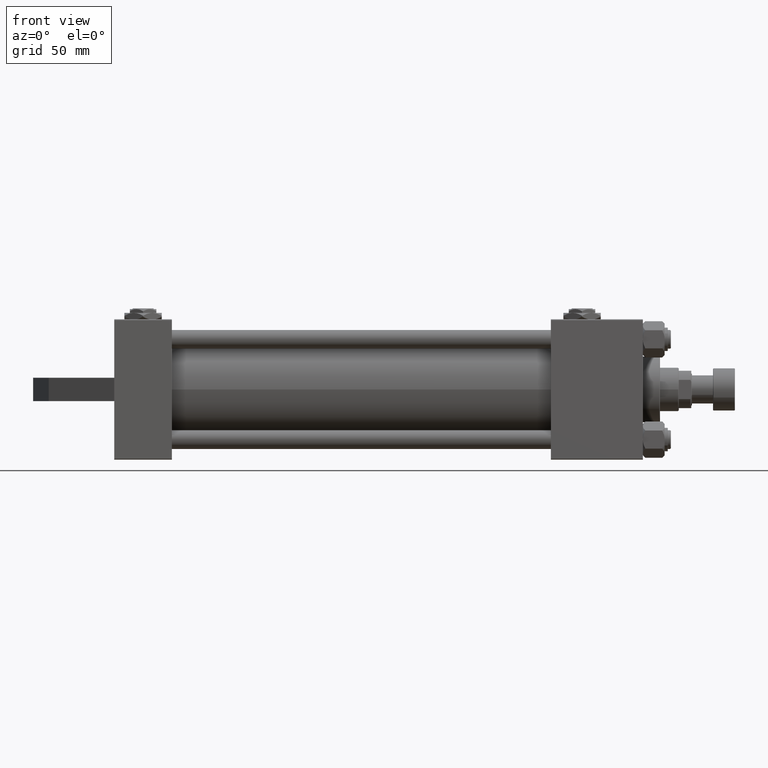
[diagram: clean part render]
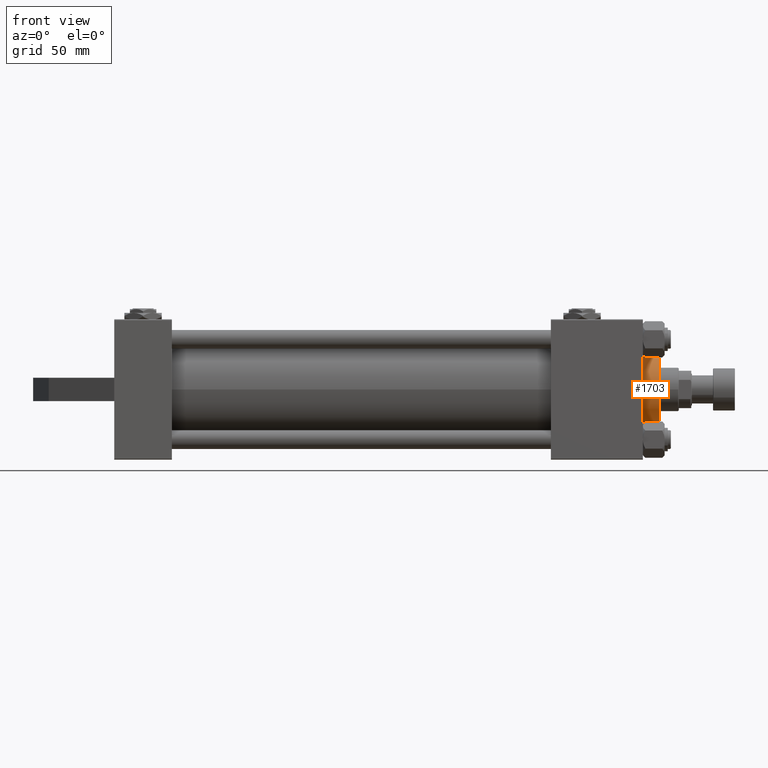
[diagram: same view with one face highlighted and labeled with its STEP entity id]
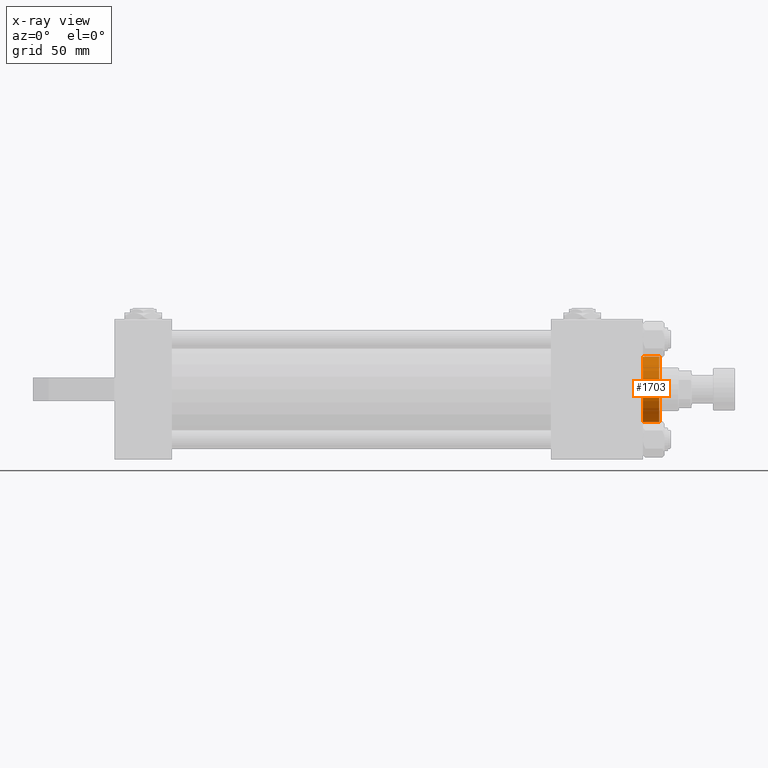
[diagram: x-ray of the same camera — body ghosted, the highlighted face saturated]
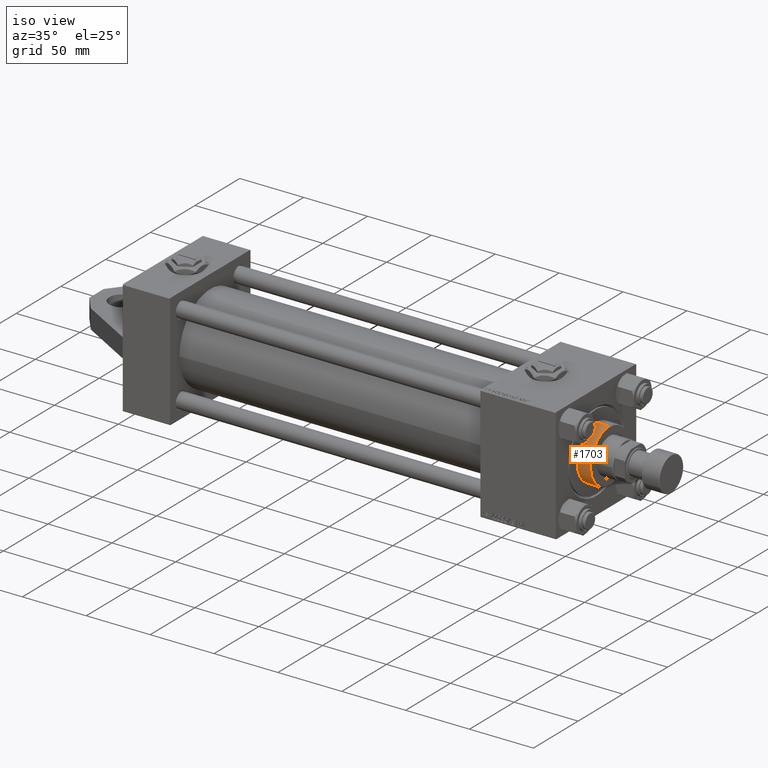
[diagram: same view with one face highlighted and labeled with its STEP entity id]
A machine part, front view. The second image highlights one B-rep face of the part: STEP entity #1703.
The next image is the same camera in x-ray: the body ghosted, the highlighted face saturated — about 0% of this face is hidden behind the body in this view.
A second angle (iso view) of the same face is appended — the face is thin or edge-on in the first view.
In plain terms, the highlighted cylindrical surface (edge-blend (fillet) strip) has radius 21 mm, axis along (-1, -0, -0).
Its self-contained STEP definition (entity closure, byte-faithful):
#485 = VERTEX_POINT ( 'NONE', #30337 ) ;
#1703 = ADVANCED_FACE ( 'NONE', ( #20381 ), #39796, .T. ) ;
#5157 = CIRCLE ( 'NONE', #9856, 21.00000000000000000 ) ;
#5662 = VERTEX_POINT ( 'NONE', #21881 ) ;
#6548 = CARTESIAN_POINT ( 'NONE',  ( 0.000000000000000000, 0.000000000000000000, 28.69999999999999929 ) ) ;
#7603 = CIRCLE ( 'NONE', #34278, 21.00000000000000000 ) ;
#9856 = AXIS2_PLACEMENT_3D ( 'NONE', #16030, #34948, #27824 ) ;
#14960 = ORIENTED_EDGE ( 'NONE', *, *, #47801, .T. ) ;
#15746 = AXIS2_PLACEMENT_3D ( 'NONE', #32174, #25045, #46671 ) ;
#16030 = CARTESIAN_POINT ( 'NONE',  ( 0.000000000000000000, 0.000000000000000000, 39.19999999999999574 ) ) ;
#16366 = VERTEX_POINT ( 'NONE', #17777 ) ;
#16597 = EDGE_CURVE ( 'NONE', #16366, #5662, #5157, .T. ) ;
#17777 = CARTESIAN_POINT ( 'NONE',  ( 21.00000000000000000, 2.571758278209441661E-15, 39.19999999999999574 ) ) ;
#19594 = EDGE_CURVE ( 'NONE', #22884, #485, #7603, .T. ) ;
#20381 = FACE_OUTER_BOUND ( 'NONE', #30198, .T. ) ;
#21881 = CARTESIAN_POINT ( 'NONE',  ( -21.00000000000000000, 0.000000000000000000, 39.19999999999999574 ) ) ;
#22351 = DIRECTION ( 'NONE',  ( -0.000000000000000000, -0.000000000000000000, -1.000000000000000000 ) ) ;
#22884 = VERTEX_POINT ( 'NONE', #39319 ) ;
#25045 = DIRECTION ( 'NONE',  ( -0.000000000000000000, -0.000000000000000000, -1.000000000000000000 ) ) ;
#25558 = LINE ( 'NONE', #41040, #30621 ) ;
#26331 = ORIENTED_EDGE ( 'NONE', *, *, #16597, .T. ) ;
#27824 = DIRECTION ( 'NONE',  ( 1.000000000000000000, 0.000000000000000000, 0.000000000000000000 ) ) ;
#30198 = EDGE_LOOP ( 'NONE', ( #46355, #26331, #14960, #37477 ) ) ;
#30337 = CARTESIAN_POINT ( 'NONE',  ( 21.00000000000000000, 2.571758278209441661E-15, 28.69999999999999929 ) ) ;
#30621 = VECTOR ( 'NONE', #22351, 1000.000000000000000 ) ;
#32174 = CARTESIAN_POINT ( 'NONE',  ( 0.000000000000000000, 0.000000000000000000, 39.69999999999999574 ) ) ;
#34278 = AXIS2_PLACEMENT_3D ( 'NONE', #6548, #36521, #47833 ) ;
#34948 = DIRECTION ( 'NONE',  ( 0.000000000000000000, 0.000000000000000000, -1.000000000000000000 ) ) ;
#36521 = DIRECTION ( 'NONE',  ( 0.000000000000000000, 0.000000000000000000, 1.000000000000000000 ) ) ;
#36771 = LINE ( 'NONE', #43907, #37921 ) ;
#37477 = ORIENTED_EDGE ( 'NONE', *, *, #19594, .T. ) ;
#37921 = VECTOR ( 'NONE', #44379, 1000.000000000000000 ) ;
#39319 = CARTESIAN_POINT ( 'NONE',  ( -21.00000000000000000, 0.000000000000000000, 28.69999999999999929 ) ) ;
#39796 = CYLINDRICAL_SURFACE ( 'NONE', #15746, 21.00000000000000000 ) ;
#39979 = EDGE_CURVE ( 'NONE', #16366, #485, #25558, .T. ) ;
#41040 = CARTESIAN_POINT ( 'NONE',  ( 21.00000000000000000, 2.571758278209441661E-15, 39.69999999999999574 ) ) ;
#43907 = CARTESIAN_POINT ( 'NONE',  ( -21.00000000000000000, 0.000000000000000000, 39.69999999999999574 ) ) ;
#44379 = DIRECTION ( 'NONE',  ( -0.000000000000000000, -0.000000000000000000, -1.000000000000000000 ) ) ;
#46355 = ORIENTED_EDGE ( 'NONE', *, *, #39979, .F. ) ;
#46671 = DIRECTION ( 'NONE',  ( -1.000000000000000000, 0.000000000000000000, 0.000000000000000000 ) ) ;
#47801 = EDGE_CURVE ( 'NONE', #5662, #22884, #36771, .T. ) ;
#47833 = DIRECTION ( 'NONE',  ( 1.000000000000000000, 0.000000000000000000, 0.000000000000000000 ) ) ;